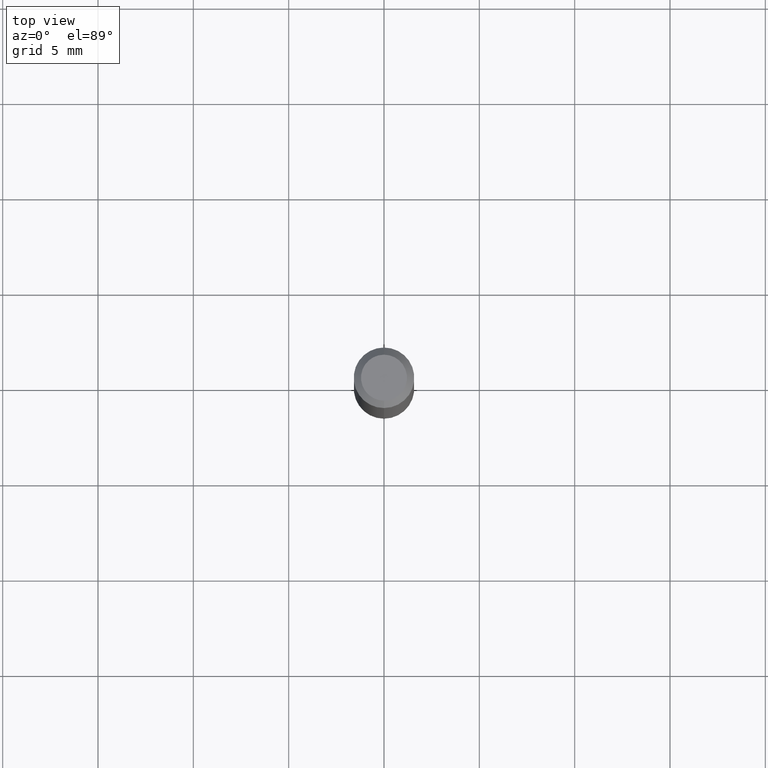
[diagram: clean part render]
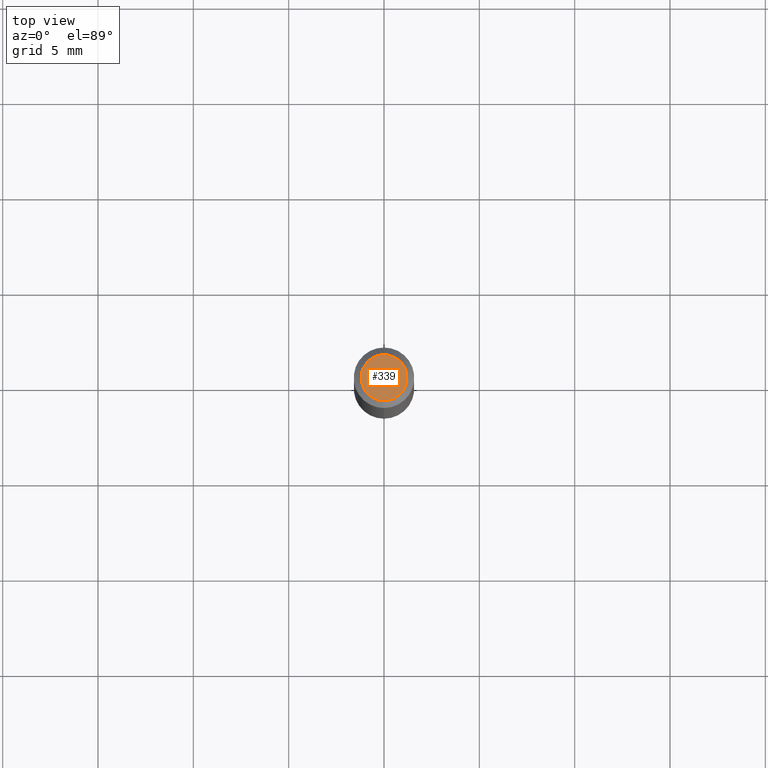
[diagram: same view with one face highlighted and labeled with its STEP entity id]
A machine part, top view. The second image highlights one B-rep face of the part: STEP entity #339.
In plain terms, the highlighted planar face has unit normal (0, -0, -1).
Its self-contained STEP definition (entity closure, byte-faithful):
#4 = AXIS2_PLACEMENT_3D ( 'NONE', #120, #311, #229 ) ;
#8 = CARTESIAN_POINT ( 'NONE',  ( 2.166988315906945118E-46, -3.093852490145761487E-32, -8.861192345705441465E-18 ) ) ;
#36 = PLANE ( 'NONE',  #4 ) ;
#87 = EDGE_CURVE ( 'NONE', #230, #422, #427, .T. ) ;
#113 = EDGE_CURVE ( 'NONE', #422, #230, #367, .T. ) ;
#116 = CARTESIAN_POINT ( 'NONE',  ( -3.773273898774340269E-16, -0.04749999999999999362, 1.569832984954696276E-16 ) ) ;
#120 = CARTESIAN_POINT ( 'NONE',  ( 3.316907271900976096E-16, 0.04749999999999999362, -1.702750870140277613E-16 ) ) ;
#126 = DIRECTION ( 'NONE',  ( -6.982962677686266711E-15, -1.000000000000000000, 3.491462965077370292E-15 ) ) ;
#127 = CARTESIAN_POINT ( 'NONE',  ( 2.166988315906945118E-46, -3.093852490145761487E-32, -8.861192345705441465E-18 ) ) ;
#195 = ORIENTED_EDGE ( 'NONE', *, *, #113, .T. ) ;
#210 = DIRECTION ( 'NONE',  ( -2.445481636517202422E-29, 3.491462965077369898E-15, 1.000000000000000000 ) ) ;
#229 = DIRECTION ( 'NONE',  ( 6.982962677686265922E-15, 1.000000000000000000, -3.491462965077369898E-15 ) ) ;
#230 = VERTEX_POINT ( 'NONE', #334 ) ;
#241 = AXIS2_PLACEMENT_3D ( 'NONE', #127, #210, #126 ) ;
#311 = DIRECTION ( 'NONE',  ( 2.445481636517202422E-29, -3.491462965077369898E-15, -1.000000000000000000 ) ) ;
#314 = ORIENTED_EDGE ( 'NONE', *, *, #87, .T. ) ;
#322 = DIRECTION ( 'NONE',  ( -6.982962677686266711E-15, -1.000000000000000000, 3.491462965077370292E-15 ) ) ;
#334 = CARTESIAN_POINT ( 'NONE',  ( 3.840629472727447874E-16, 0.04749999999999999362, -1.747056831868805136E-16 ) ) ;
#339 = ADVANCED_FACE ( 'NONE', ( #388 ), #36, .F. ) ;
#367 = CIRCLE ( 'NONE', #461, 0.04749999999999999362 ) ;
#388 = FACE_OUTER_BOUND ( 'NONE', #467, .T. ) ;
#422 = VERTEX_POINT ( 'NONE', #116 ) ;
#427 = CIRCLE ( 'NONE', #241, 0.04749999999999999362 ) ;
#461 = AXIS2_PLACEMENT_3D ( 'NONE', #8, #472, #322 ) ;
#467 = EDGE_LOOP ( 'NONE', ( #314, #195 ) ) ;
#472 = DIRECTION ( 'NONE',  ( -2.445481636517202422E-29, 3.491462965077369898E-15, 1.000000000000000000 ) ) ;